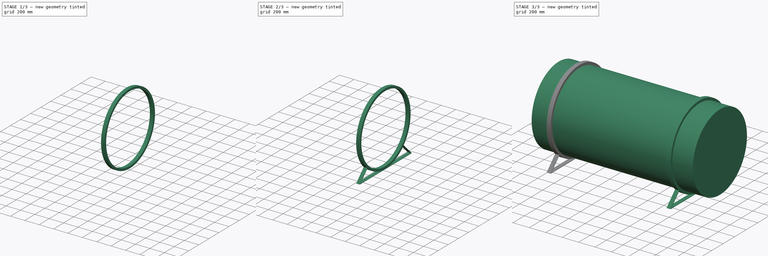
[diagram: build sequence overview — one tinted view per stage of 3, left to right]
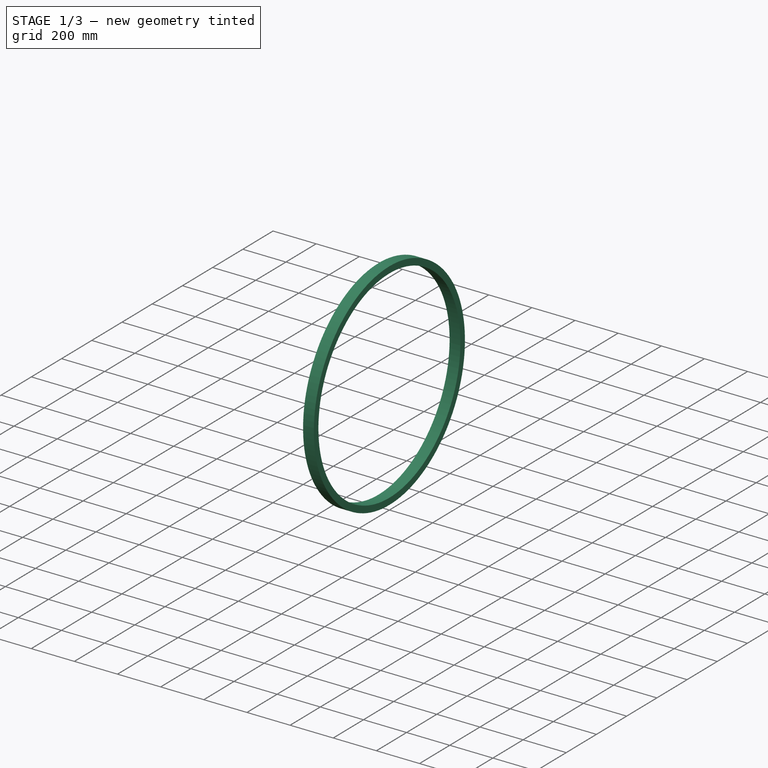
[diagram: stage 1 of 3 — iso view after this stage's code; geometry added in this stage tinted green]
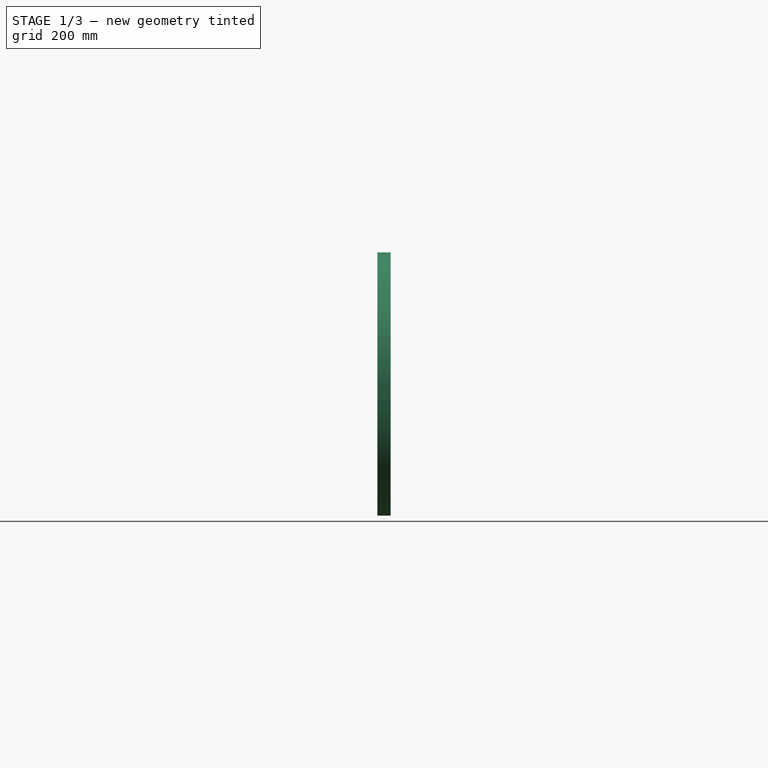
[diagram: stage 1 of 3 — front view after this stage's code; geometry added in this stage tinted green]
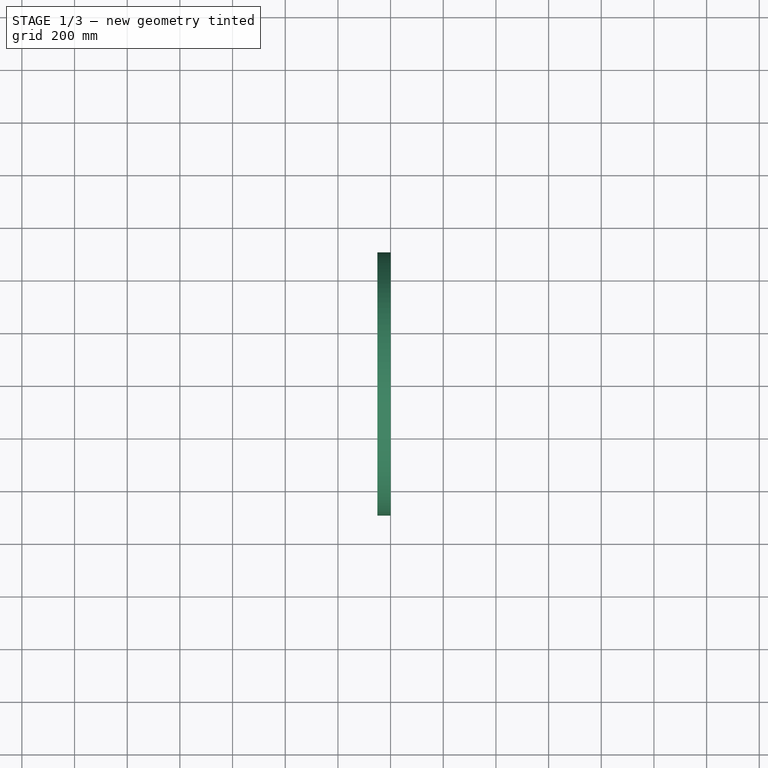
[diagram: stage 1 of 3 — top view after this stage's code; geometry added in this stage tinted green]
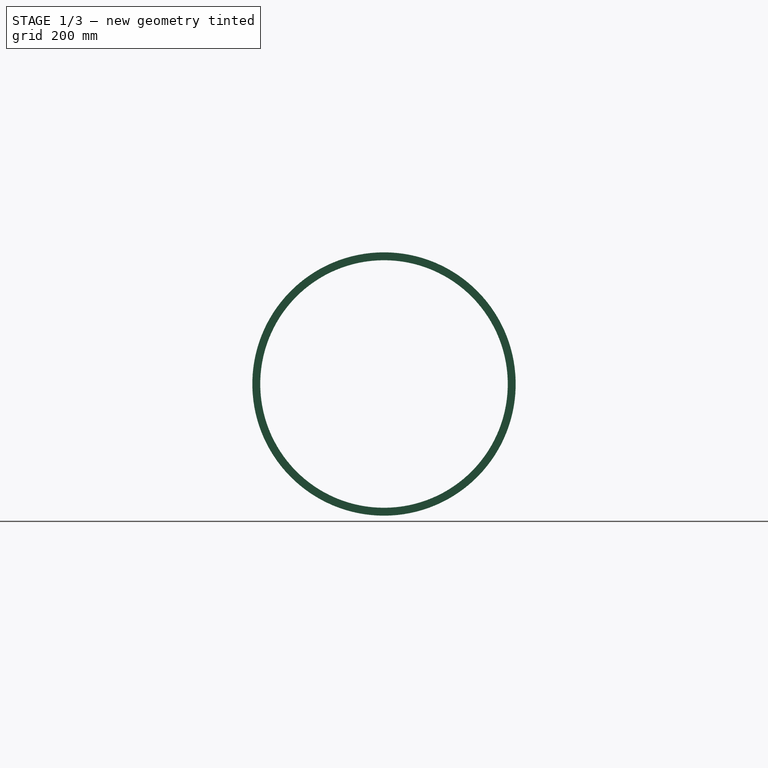
[diagram: stage 1 of 3 — right view after this stage's code; geometry added in this stage tinted green]
FCSTD DOCUMENT  (FreeCAD 0.20R29410 (Git))
Label: Boiler
License: All rights reserved
objects: Part::Cylinder×3, Part::Compound×3, Part::Cut×1, Sketcher::SketchObject×1, Part::Extrusion×1
note: 9 computed .brp shape members not serialized (recipe doc carries the construction recipe); baked Part::Feature solids carry a one-line shape summary decoded from their .brp

FEATURE [Part::Cylinder] Cylinder001  label="Cilindro001"
  Angle = 360
  AttacherType = Attacher::AttachEngine3D
  FirstAngle = 0
  Height = 50
  Placement = pos=(1000,0,465.755) rot=(0,-1,0;1.5708rad)
  Radius = 470
  SecondAngle = 0
FEATURE [Part::Cylinder] Cylinder002  label="Cilindro002"
  Angle = 360
  AttacherType = Attacher::AttachEngine3D
  FirstAngle = 0
  Height = 50
  Placement = pos=(1000,0,465.755) rot=(0,-1,0;1.5708rad)
  Radius = 500
  SecondAngle = 0
FEATURE [Part::Cut] Cut
  Base = -> Cylinder002
  Tool = -> Cylinder001
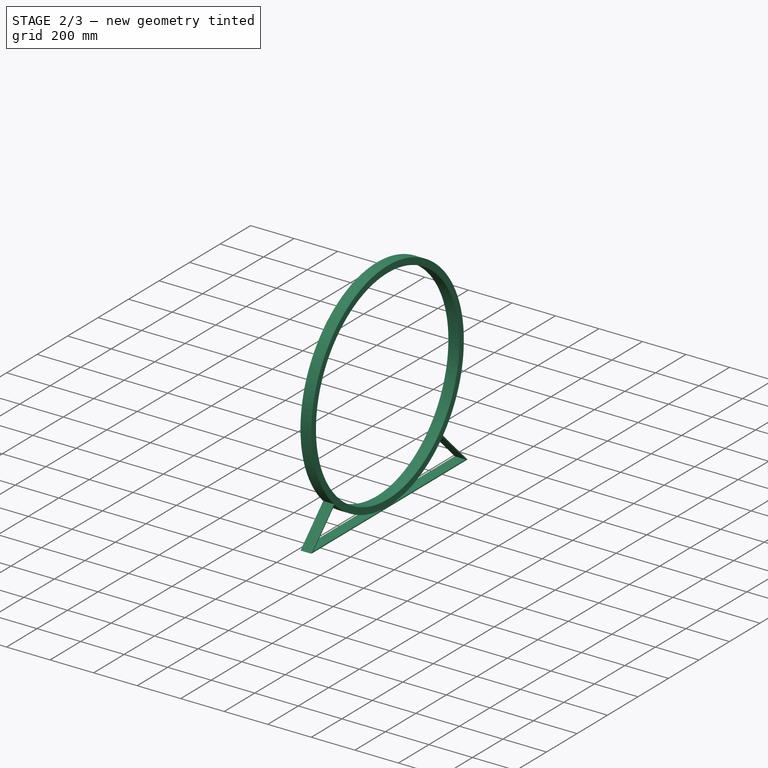
[diagram: stage 2 of 3 — iso view after this stage's code; geometry added in this stage tinted green]
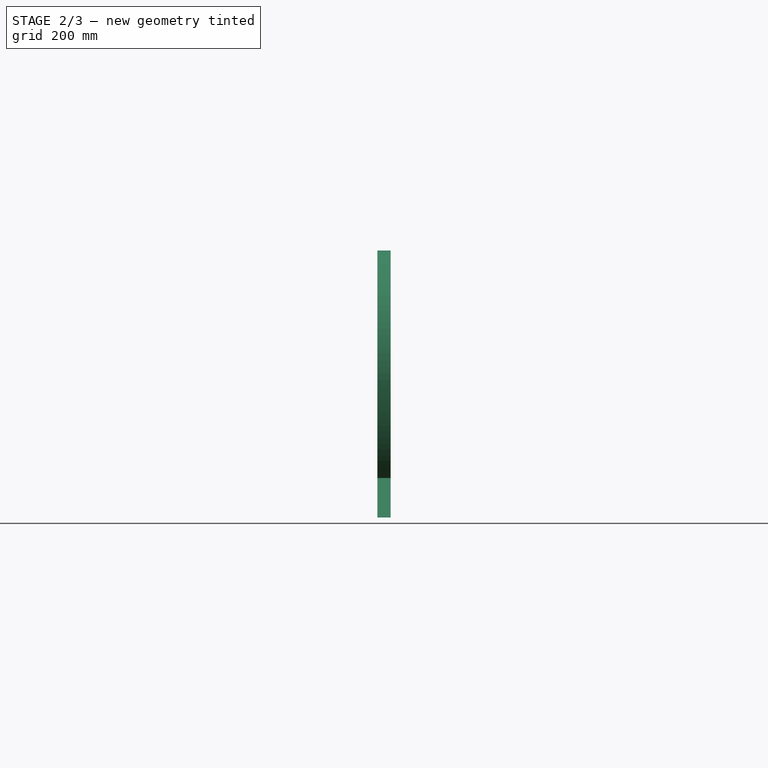
[diagram: stage 2 of 3 — front view after this stage's code; geometry added in this stage tinted green]
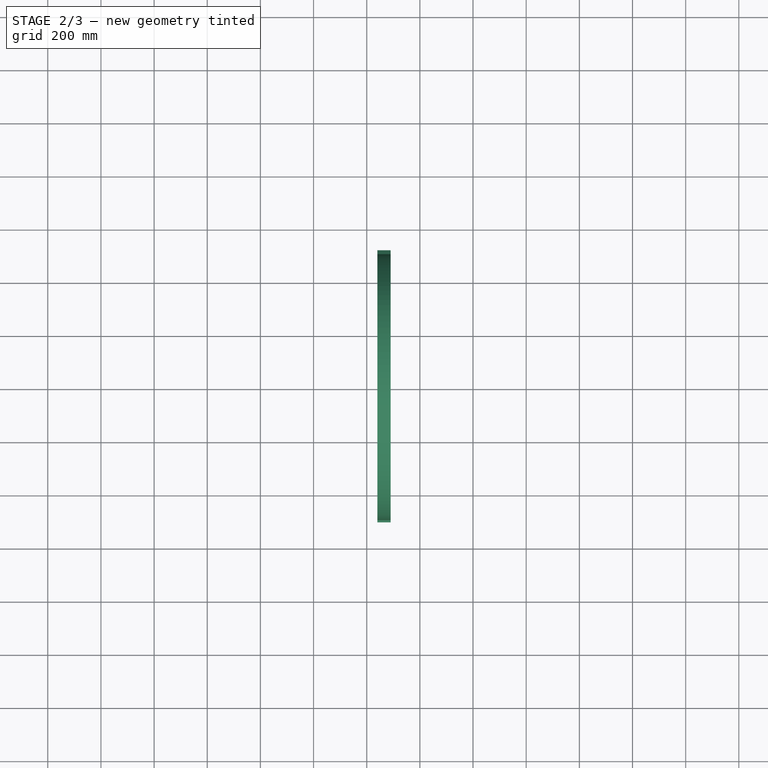
[diagram: stage 2 of 3 — top view after this stage's code; geometry added in this stage tinted green]
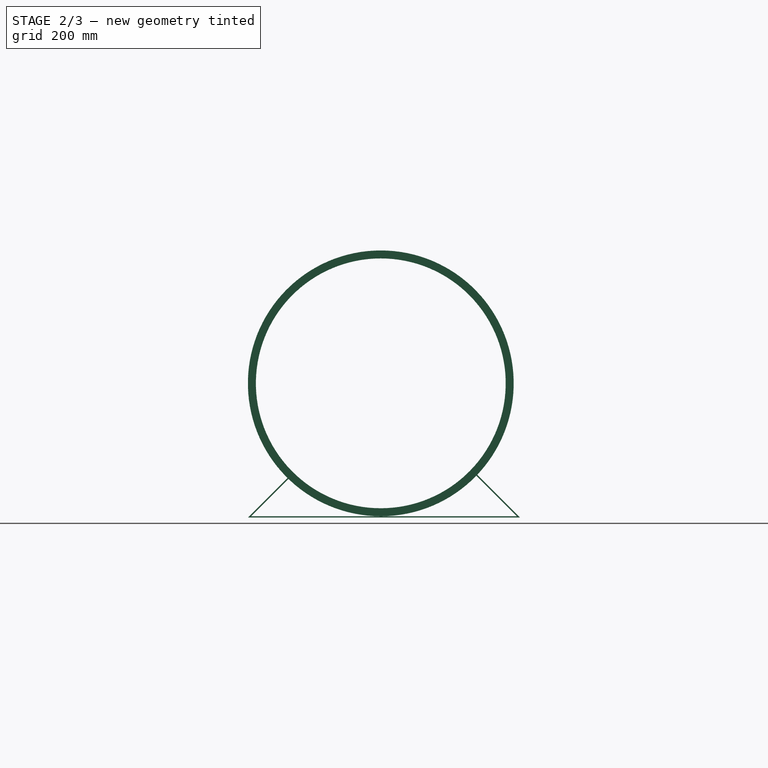
[diagram: stage 2 of 3 — right view after this stage's code; geometry added in this stage tinted green]
FEATURE [Sketcher::SketchObject] Sketch
  ExternalGeometry = -> [Cut]
  FullyConstrained = true
  Placement = pos=(1000,-2.958e-13,465.755) rot=(0.57735,0.57735,0.57735;2.0944rad)
  expr: Constraints[23] = .Constraints.comp_base / 2
  expr: Constraints[5] = 180 - 45
  sketch-geometry (8):
    g0: LineSegment StartX=-487.929 StartY=-500 StartZ=0 EndX=512.071 EndY=-500 EndZ=0
    g1: LineSegment StartX=-500 StartY=-505 StartZ=0 EndX=524.14 EndY=-505 EndZ=0
    g2: LineSegment StartX=-487.929 StartY=-500 StartZ=0 EndX=-347.467 EndY=-359.537 EndZ=0
    g3: LineSegment StartX=512.071 StartY=-500 StartZ=0 EndX=359.537 EndY=-347.467 EndZ=0
    g4: LineSegment StartX=-351.045 StartY=-356.045 StartZ=0 EndX=-500 EndY=-505 EndZ=0
    g5: LineSegment StartX=524.14 StartY=-505 StartZ=0 EndX=362.994 EndY=-343.854 EndZ=0
    g6: LineSegment StartX=-351.045 StartY=-356.045 StartZ=0 EndX=-347.467 EndY=-359.537 EndZ=0
    g7: LineSegment StartX=362.994 StartY=-343.854 StartZ=0 EndX=359.537 EndY=-347.467 EndZ=0
  constraints (24):
    c: Coincident(g2,g0)
    c: PointOnObject(g2,g-3)
    c: PointOnObject(g4,g-3)
    c: DistanceY(g1,g0) = 5
    c: Angle(g2) = 0.785398
    c: Angle(g3) = 2.35619
    c: Coincident(g6,g4)
    c: Coincident(g6,g2)
    c: Equal(g6,g7)
    c: Coincident(g3,g7)
    c: PointOnObject(g3,g-3)
    c: Coincident(g4,g1)
    c: Distance(g6) = 5
    c: Coincident(g7,g5)
    c: Parallel(g5,g3)
    c: PointOnObject(g5,g-3)
    c: Coincident(g3,g0)
    c: Coincident(g5,g1)
    c: Horizontal(g0)
    c: Parallel(g0,g1)
    c: Parallel(g2,g4)
    c: Tangent(g0,g-3)
    c: DistanceX(g0,g0) = 1000  'comp_base'
    c: DistanceX(g1,g-3) = 500
FEATURE [Part::Extrusion] Extrude
  Base = -> Sketch
  Dir = (1,0,0)
  DirMode = 2
  FaceMakerClass = Part::FaceMakerBullseye
  LengthFwd = 0
  LengthRev = 50
  Solid = true
  Symmetric = false
FEATURE [Part::Compound] Compound001  label="Suporte001"
  Links = -> [Cut,Extrude]
  Placement = pos=(-1710,0,0) rot=(0,0,1;0rad)
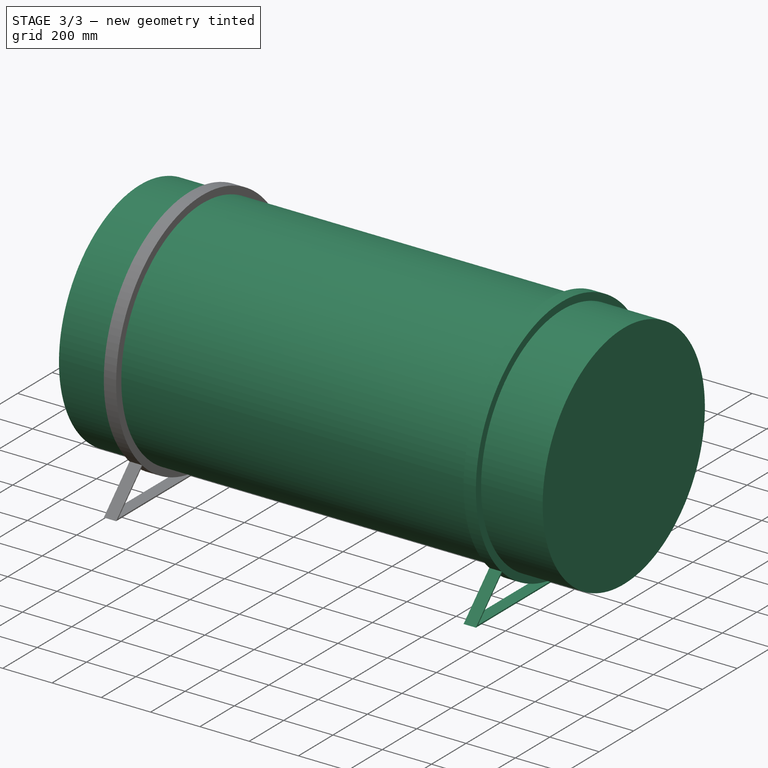
[diagram: stage 3 of 3 — iso view after this stage's code; geometry added in this stage tinted green]
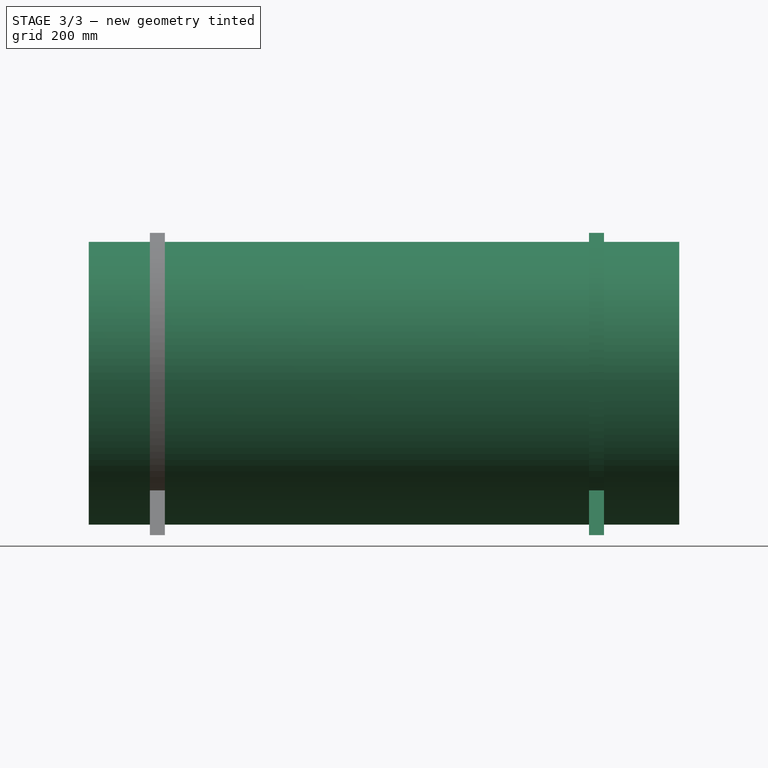
[diagram: stage 3 of 3 — front view after this stage's code; geometry added in this stage tinted green]
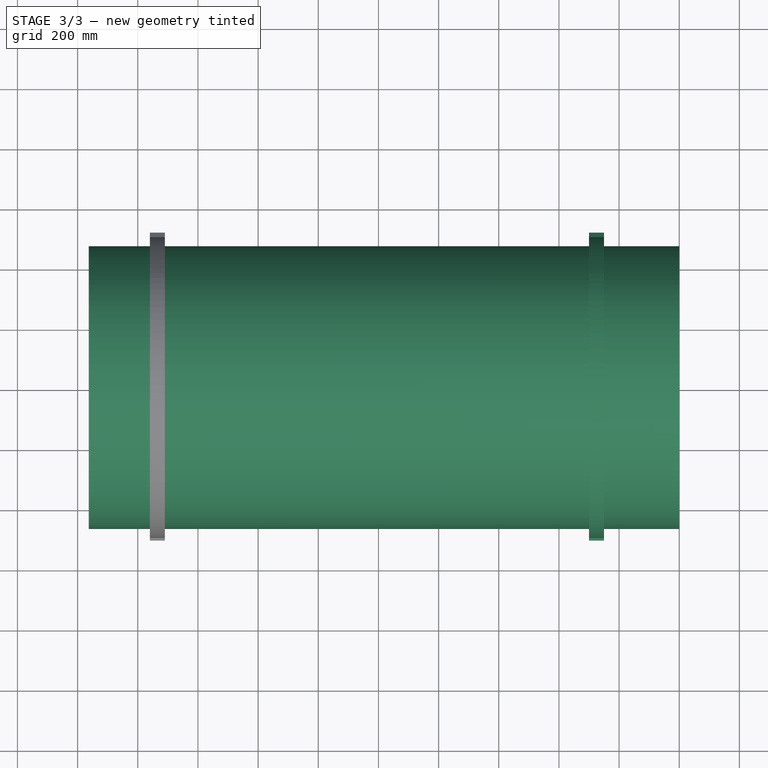
[diagram: stage 3 of 3 — top view after this stage's code; geometry added in this stage tinted green]
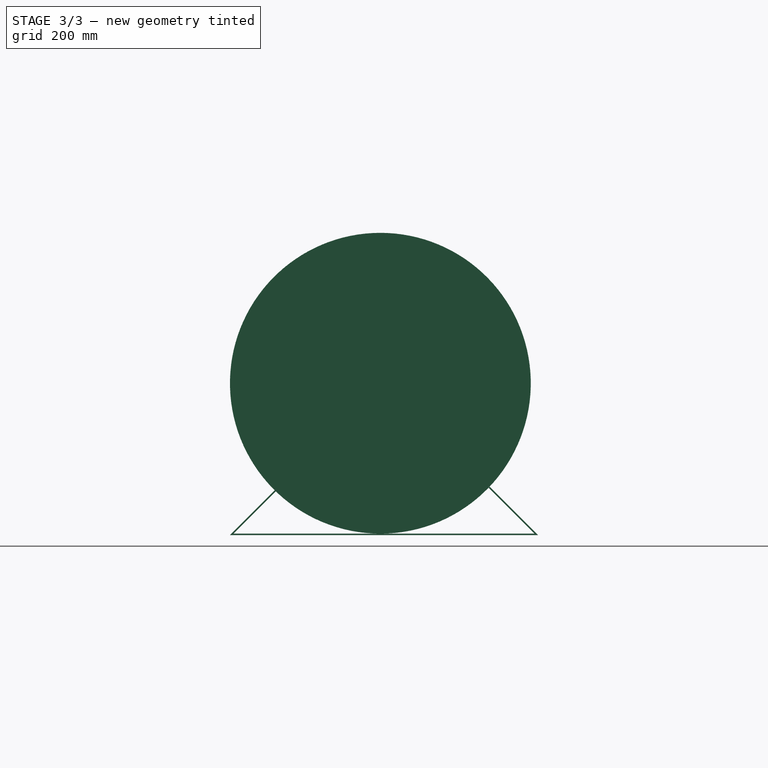
[diagram: stage 3 of 3 — right view after this stage's code; geometry added in this stage tinted green]
FEATURE [Part::Cylinder] Cylinder  label="Cilindro"
  Angle = 360
  AttacherType = Attacher::AttachEngine3D
  FirstAngle = 0
  Height = 1963
  Placement = pos=(1000,0,465.755) rot=(0,-1,0;1.5708rad)
  Radius = 470
  SecondAngle = 0
FEATURE [Part::Compound] Compound  label="Suporte"
  Links = -> [Cut,Extrude]
  Placement = pos=(-250,0,0) rot=(0,0,1;0rad)
FEATURE [Part::Compound] Compound002  label="Boiler"
  Links = -> [Cylinder,Compound,Compound001]
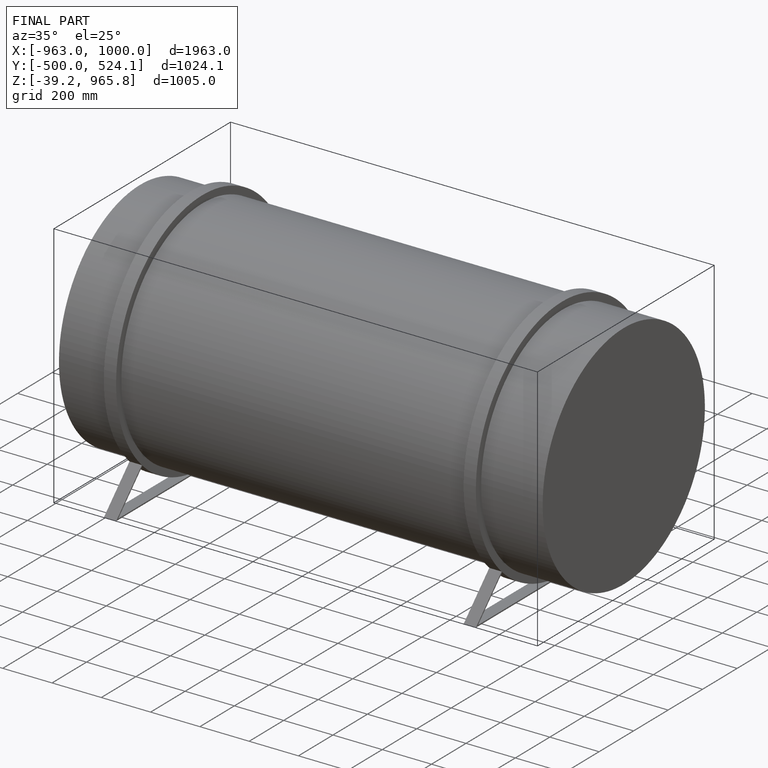
[diagram: finished part — iso view with bounding-box wireframe]
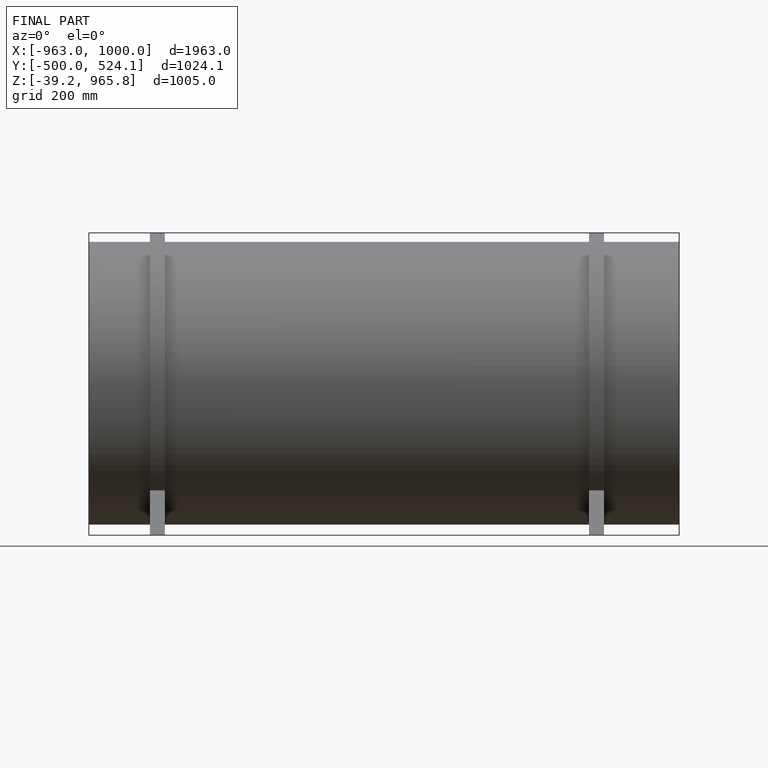
[diagram: finished part — front view with bounding-box wireframe]
